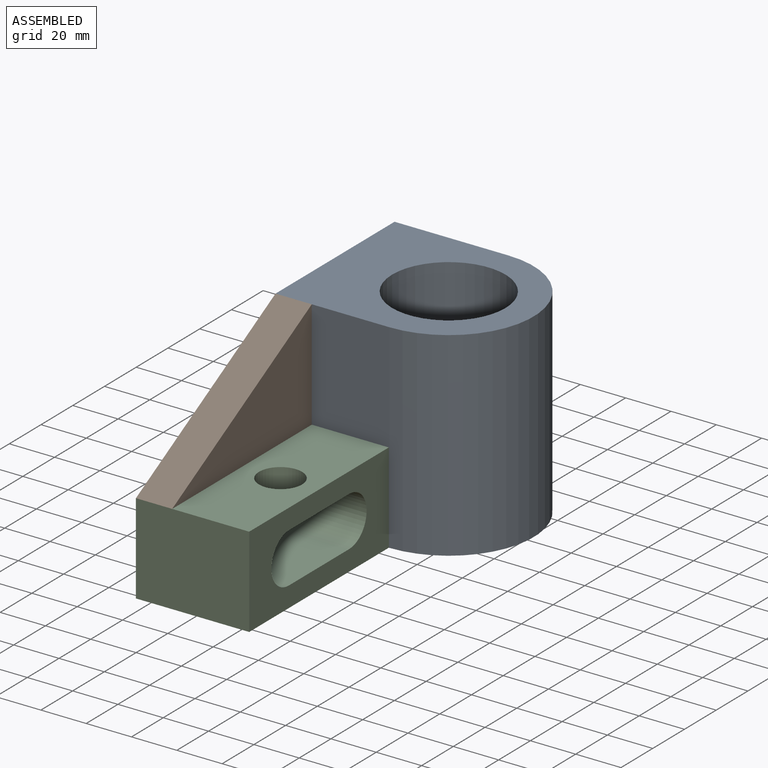
[diagram: assembled view]
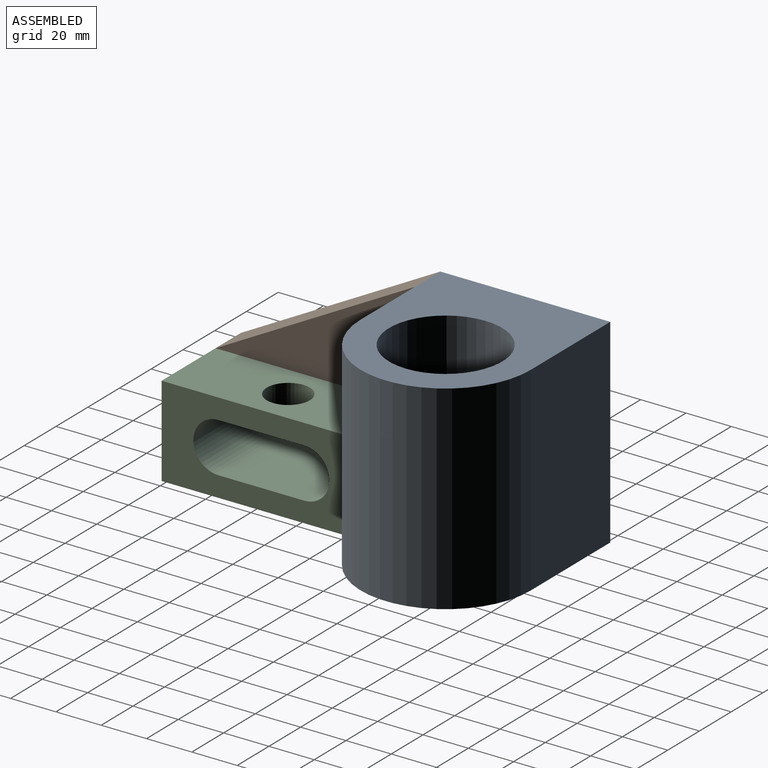
[diagram: assembled view, second angle]
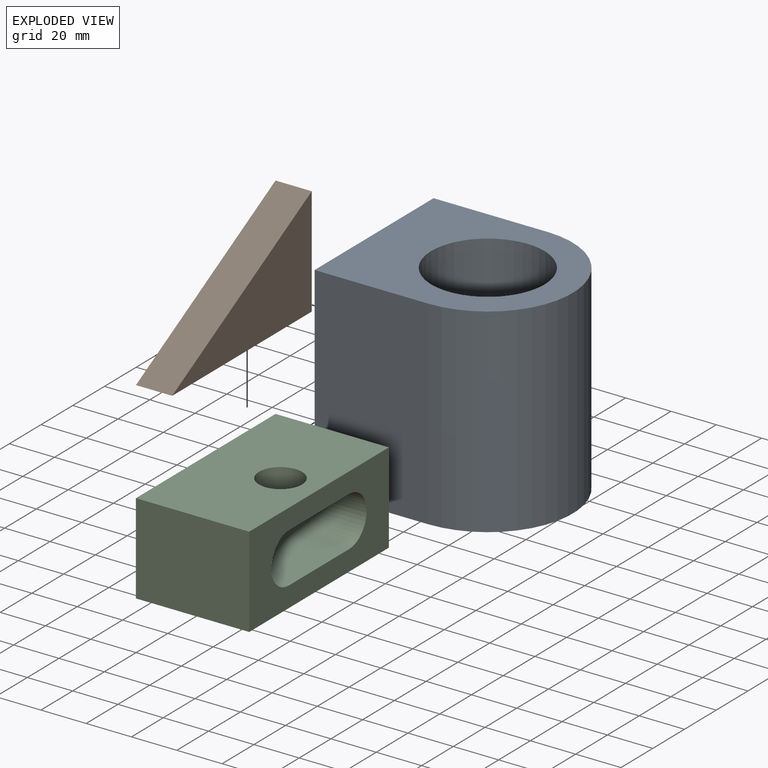
[diagram: exploded view]
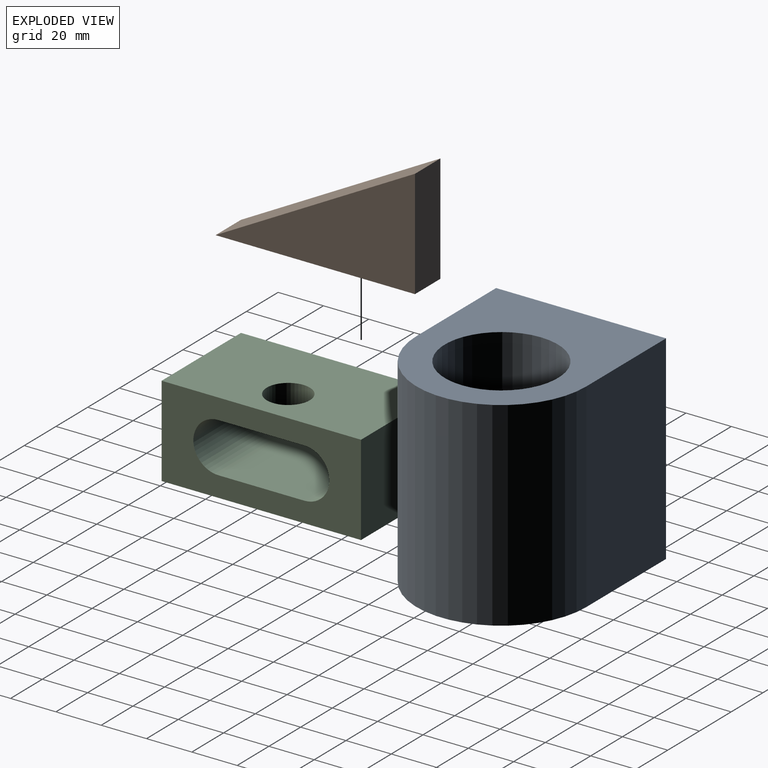
[diagram: exploded view, second angle]
ASSEMBLY  parts=3 mates=2
PART A: 7 faces, bbox 87.7x75x88 mm
  f0: plane 88x50.22mm, normal (0,-1,0), area 4419mm2, adj f1,f4,f5,f6
  f1: cylinder r=37.5mm len=88mm, axis (0,0,-1), area 10367.3mm2, adj f0,f2,f5,f6
  f2: plane 88x50.22mm, normal (0,1,0), area 4419mm2, adj f1,f4,f5,f6
  f3: cylinder r=25mm len=88mm, axis (0,0,-1), area 13823mm2, adj f5,f6
  f4: plane 88x75mm, normal (-1,0,0), area 6600mm2, adj f0,f2,f5,f6
  f5: plane 87.72x75mm, normal (0,0,1), area 4011.6mm2, adj f0,f1,f2,f3,f4
  f6: plane 87.72x75mm, normal (0,0,-1), area 4011.6mm2, adj f0,f1,f2,f3,f4
PART B: 5 faces, bbox 16x88x48 mm
  f0: plane 88x48mm, normal (0,-0.48,0.88), area 1603.8mm2, adj f1,f2,f3,f4
  f1: plane 88x16mm, normal (0,0,-1), area 1408mm2, adj f0,f2,f3,f4
  f2: plane 48x16mm, normal (0,1,0), area 768mm2, adj f0,f1,f3,f4
  f3: plane 88x48mm, normal (1,0,0), area 2112mm2, adj f0,f1,f2
  f4: plane 88x48mm, normal (-1,0,0), area 2112mm2, adj f0,f1,f2
PART C: 11 faces, bbox 88x50x40 mm
  f0: cylinder r=11mm len=50mm, axis (0,1,0), area 1727.9mm2, adj f1,f7,f8,f9
  f1: plane 50x38mm, normal (0,0,-1), area 1616.5mm2, adj f0,f2,f8,f9,f10
  f2: cylinder r=11mm len=50mm, axis (0,1,0), area 1727.9mm2, adj f1,f7,f8,f9
  f3: plane 50x40mm, normal (-1,0,0), area 2000mm2, adj f4,f6,f8,f9
  f4: plane 88x50mm, normal (0,0,-1), area 4400mm2, adj f3,f5,f8,f9
  f5: plane 50x40mm, normal (1,0,0), area 2000mm2, adj f4,f6,f8,f9
  f6: plane 88x50mm, normal (0,0,1), area 4116.5mm2, adj f3,f5,f8,f9,f10
  f7: plane 50x38mm, normal (0,0,1), area 1900mm2, adj f0,f2,f8,f9
  f8: plane 88x40mm, normal (0,-1,0), area 2303.9mm2, adj f0,f1,f2,f3,f4,f5,f6,f7
  f9: plane 88x40mm, normal (0,1,0), area 2303.9mm2, adj f0,f1,f2,f3,f4,f5,f6,f7
  f10: cylinder r=9.5mm len=19mm, axis (0,0,1), area 537.2mm2, adj f1,f6
PLACE A at identity
PLACE B t=(-50.22,-125.5,40)mm
PLACE C rot(axis=(0,0,1),90deg) t=(-50.22,-125.5,0)mm
MATE planar B.f2 <-> A.f0  axis (0,1,0) through (-50.22,-37.5,88)mm
MATE planar C.f6 <-> B.f1  axis (0,0,1) through (-50.22,-81.5,40)mm
